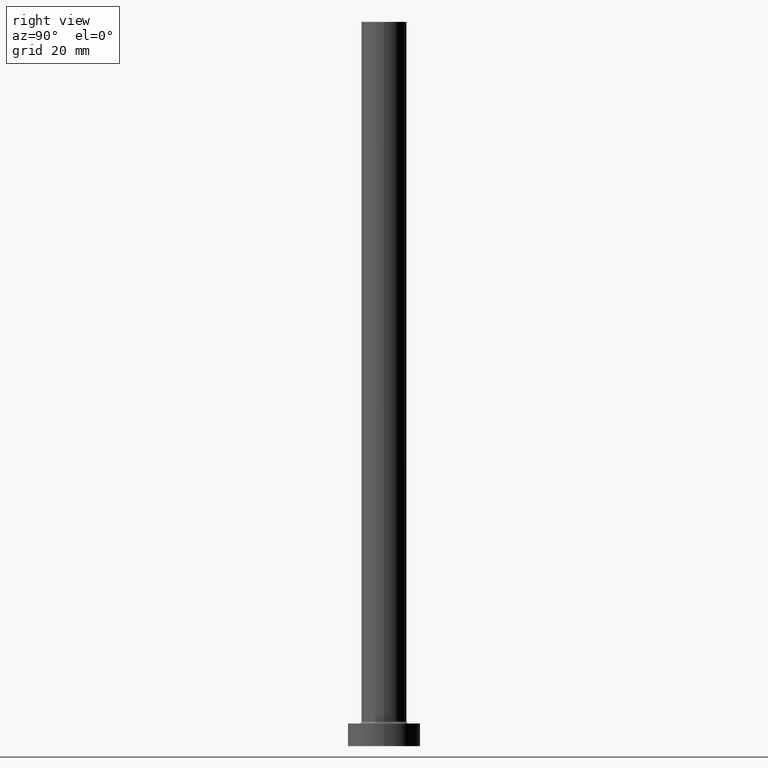
[diagram: clean part render]
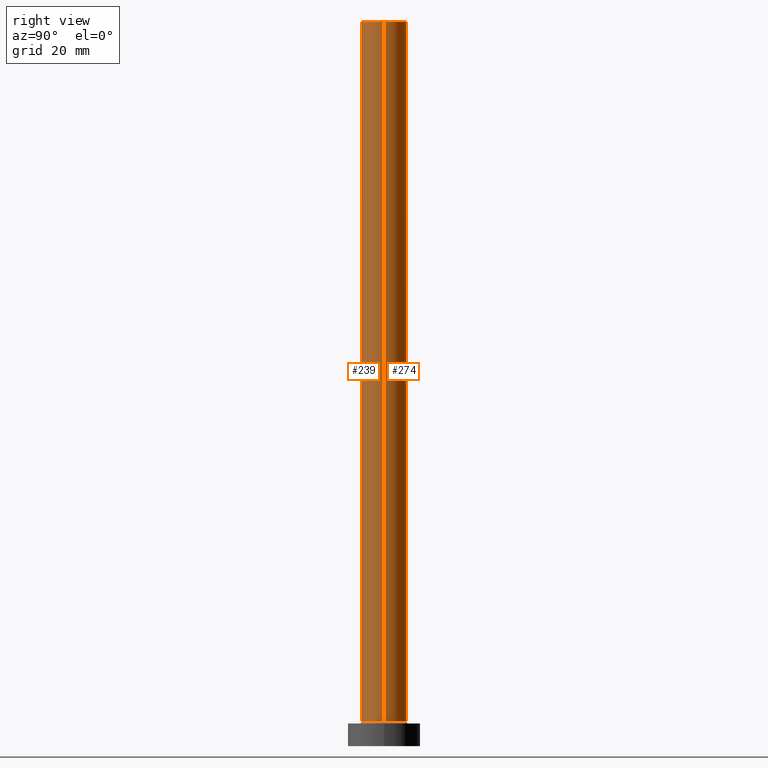
[diagram: same view with one multi-face feature highlighted, each face labeled with its STEP entity id]
A machine part, right view. The highlighted faces form ONE feature: a constant-radius fillet chain: 2 tangent blend faces with common blend radius 5 mm. The faces share edges in the B-rep.
Their STEP definitions:
[1] entity #274 (Cylinder):
#6 = ORIENTED_EDGE ( 'NONE', *, *, #101, .F. ) ;
#8 = EDGE_LOOP ( 'NONE', ( #6, #390, #422, #401 ) ) ;
#18 = EDGE_CURVE ( 'NONE', #430, #169, #155, .T. ) ;
#25 = AXIS2_PLACEMENT_3D ( 'NONE', #446, #115, #127 ) ;
#51 = CARTESIAN_POINT ( 'NONE',  ( 5.000000000000000000, 6.123233995736766282E-16, 160.0000000000000000 ) ) ;
#54 = LINE ( 'NONE', #448, #412 ) ;
#84 = EDGE_CURVE ( 'NONE', #118, #430, #230, .T. ) ;
#100 = FACE_OUTER_BOUND ( 'NONE', #8, .T. ) ;
#101 = EDGE_CURVE ( 'NONE', #118, #269, #250, .T. ) ;
#108 = CARTESIAN_POINT ( 'NONE',  ( 0.000000000000000000, 0.000000000000000000, 5.500000000000005329 ) ) ;
#115 = DIRECTION ( 'NONE',  ( 0.000000000000000000, 0.000000000000000000, 1.000000000000000000 ) ) ;
#118 = VERTEX_POINT ( 'NONE', #399 ) ;
#127 = DIRECTION ( 'NONE',  ( 1.000000000000000000, 0.000000000000000000, 0.000000000000000000 ) ) ;
#135 = CARTESIAN_POINT ( 'NONE',  ( 0.000000000000000000, 0.000000000000000000, 160.0000000000000000 ) ) ;
#139 = DIRECTION ( 'NONE',  ( -0.000000000000000000, -0.000000000000000000, -1.000000000000000000 ) ) ;
#155 = CIRCLE ( 'NONE', #244, 5.000000000000000000 ) ;
#169 = VERTEX_POINT ( 'NONE', #247 ) ;
#206 = DIRECTION ( 'NONE',  ( -1.000000000000000000, 0.000000000000000000, 0.000000000000000000 ) ) ;
#221 = AXIS2_PLACEMENT_3D ( 'NONE', #135, #139, #206 ) ;
#230 = LINE ( 'NONE', #51, #424 ) ;
#244 = AXIS2_PLACEMENT_3D ( 'NONE', #108, #378, #288 ) ;
#247 = CARTESIAN_POINT ( 'NONE',  ( -5.000000000000000000, 0.000000000000000000, 5.500000000000005329 ) ) ;
#250 = CIRCLE ( 'NONE', #25, 5.000000000000000000 ) ;
#269 = VERTEX_POINT ( 'NONE', #276 ) ;
#274 = ADVANCED_FACE ( 'NONE', ( #100 ), #388, .T. ) ;
#276 = CARTESIAN_POINT ( 'NONE',  ( -5.000000000000000000, 0.000000000000000000, 160.0000000000000000 ) ) ;
#288 = DIRECTION ( 'NONE',  ( 1.000000000000000000, 0.000000000000000000, 0.000000000000000000 ) ) ;
#296 = DIRECTION ( 'NONE',  ( -0.000000000000000000, -0.000000000000000000, -1.000000000000000000 ) ) ;
#341 = CARTESIAN_POINT ( 'NONE',  ( 5.000000000000000000, 6.123233995736766282E-16, 5.500000000000005329 ) ) ;
#375 = EDGE_CURVE ( 'NONE', #269, #169, #54, .T. ) ;
#378 = DIRECTION ( 'NONE',  ( 0.000000000000000000, 0.000000000000000000, 1.000000000000000000 ) ) ;
#388 = CYLINDRICAL_SURFACE ( 'NONE', #221, 5.000000000000000000 ) ;
#390 = ORIENTED_EDGE ( 'NONE', *, *, #84, .T. ) ;
#399 = CARTESIAN_POINT ( 'NONE',  ( 5.000000000000000000, 6.123233995736766282E-16, 160.0000000000000000 ) ) ;
#401 = ORIENTED_EDGE ( 'NONE', *, *, #375, .F. ) ;
#402 = DIRECTION ( 'NONE',  ( -0.000000000000000000, -0.000000000000000000, -1.000000000000000000 ) ) ;
#412 = VECTOR ( 'NONE', #296, 1000.000000000000000 ) ;
#422 = ORIENTED_EDGE ( 'NONE', *, *, #18, .T. ) ;
#424 = VECTOR ( 'NONE', #402, 1000.000000000000000 ) ;
#430 = VERTEX_POINT ( 'NONE', #341 ) ;
#446 = CARTESIAN_POINT ( 'NONE',  ( 0.000000000000000000, 0.000000000000000000, 160.0000000000000000 ) ) ;
#448 = CARTESIAN_POINT ( 'NONE',  ( -5.000000000000000000, 0.000000000000000000, 160.0000000000000000 ) ) ;
[2] entity #239 (Cylinder):
#5 = CARTESIAN_POINT ( 'NONE',  ( 0.000000000000000000, 0.000000000000000000, 160.0000000000000000 ) ) ;
#13 = CIRCLE ( 'NONE', #452, 5.000000000000000000 ) ;
#33 = CIRCLE ( 'NONE', #195, 5.000000000000000000 ) ;
#34 = ORIENTED_EDGE ( 'NONE', *, *, #64, .T. ) ;
#50 = FACE_OUTER_BOUND ( 'NONE', #80, .T. ) ;
#51 = CARTESIAN_POINT ( 'NONE',  ( 5.000000000000000000, 6.123233995736766282E-16, 160.0000000000000000 ) ) ;
#54 = LINE ( 'NONE', #448, #412 ) ;
#64 = EDGE_CURVE ( 'NONE', #169, #430, #33, .T. ) ;
#72 = DIRECTION ( 'NONE',  ( 0.000000000000000000, 0.000000000000000000, 1.000000000000000000 ) ) ;
#80 = EDGE_LOOP ( 'NONE', ( #453, #182, #454, #34 ) ) ;
#82 = DIRECTION ( 'NONE',  ( 1.000000000000000000, 0.000000000000000000, 0.000000000000000000 ) ) ;
#84 = EDGE_CURVE ( 'NONE', #118, #430, #230, .T. ) ;
#90 = DIRECTION ( 'NONE',  ( -0.000000000000000000, -0.000000000000000000, -1.000000000000000000 ) ) ;
#94 = AXIS2_PLACEMENT_3D ( 'NONE', #406, #90, #370 ) ;
#118 = VERTEX_POINT ( 'NONE', #399 ) ;
#123 = CARTESIAN_POINT ( 'NONE',  ( 0.000000000000000000, 0.000000000000000000, 5.500000000000005329 ) ) ;
#169 = VERTEX_POINT ( 'NONE', #247 ) ;
#182 = ORIENTED_EDGE ( 'NONE', *, *, #188, .F. ) ;
#188 = EDGE_CURVE ( 'NONE', #269, #118, #13, .T. ) ;
#195 = AXIS2_PLACEMENT_3D ( 'NONE', #123, #436, #283 ) ;
#230 = LINE ( 'NONE', #51, #424 ) ;
#239 = ADVANCED_FACE ( 'NONE', ( #50 ), #259, .T. ) ;
#247 = CARTESIAN_POINT ( 'NONE',  ( -5.000000000000000000, 0.000000000000000000, 5.500000000000005329 ) ) ;
#259 = CYLINDRICAL_SURFACE ( 'NONE', #94, 5.000000000000000000 ) ;
#269 = VERTEX_POINT ( 'NONE', #276 ) ;
#276 = CARTESIAN_POINT ( 'NONE',  ( -5.000000000000000000, 0.000000000000000000, 160.0000000000000000 ) ) ;
#283 = DIRECTION ( 'NONE',  ( 1.000000000000000000, 0.000000000000000000, 0.000000000000000000 ) ) ;
#296 = DIRECTION ( 'NONE',  ( -0.000000000000000000, -0.000000000000000000, -1.000000000000000000 ) ) ;
#341 = CARTESIAN_POINT ( 'NONE',  ( 5.000000000000000000, 6.123233995736766282E-16, 5.500000000000005329 ) ) ;
#370 = DIRECTION ( 'NONE',  ( -1.000000000000000000, 0.000000000000000000, 0.000000000000000000 ) ) ;
#375 = EDGE_CURVE ( 'NONE', #269, #169, #54, .T. ) ;
#399 = CARTESIAN_POINT ( 'NONE',  ( 5.000000000000000000, 6.123233995736766282E-16, 160.0000000000000000 ) ) ;
#402 = DIRECTION ( 'NONE',  ( -0.000000000000000000, -0.000000000000000000, -1.000000000000000000 ) ) ;
#406 = CARTESIAN_POINT ( 'NONE',  ( 0.000000000000000000, 0.000000000000000000, 160.0000000000000000 ) ) ;
#412 = VECTOR ( 'NONE', #296, 1000.000000000000000 ) ;
#424 = VECTOR ( 'NONE', #402, 1000.000000000000000 ) ;
#430 = VERTEX_POINT ( 'NONE', #341 ) ;
#436 = DIRECTION ( 'NONE',  ( 0.000000000000000000, 0.000000000000000000, 1.000000000000000000 ) ) ;
#448 = CARTESIAN_POINT ( 'NONE',  ( -5.000000000000000000, 0.000000000000000000, 160.0000000000000000 ) ) ;
#452 = AXIS2_PLACEMENT_3D ( 'NONE', #5, #72, #82 ) ;
#453 = ORIENTED_EDGE ( 'NONE', *, *, #84, .F. ) ;
#454 = ORIENTED_EDGE ( 'NONE', *, *, #375, .T. ) ;